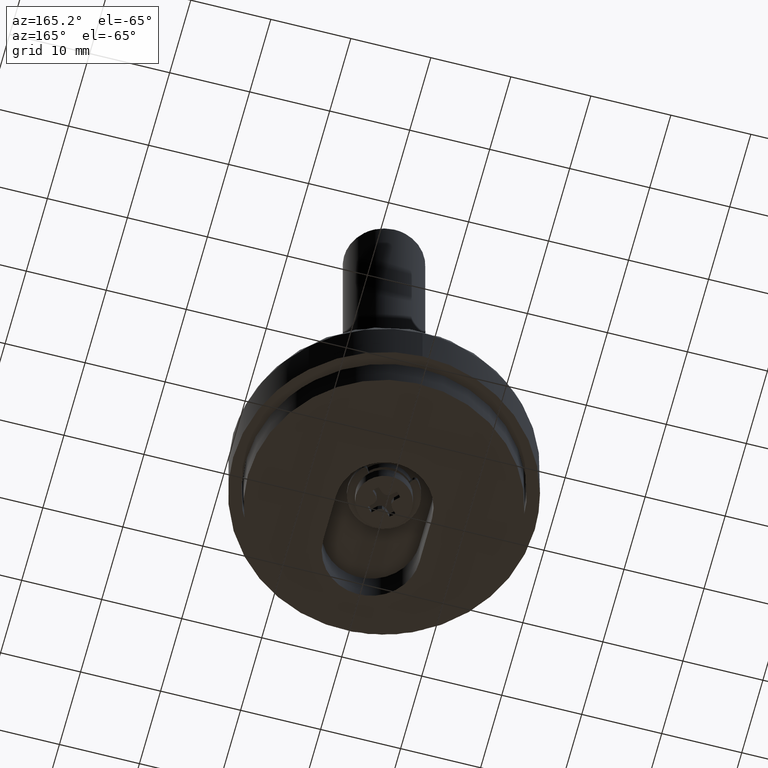
[diagram: clean part render]
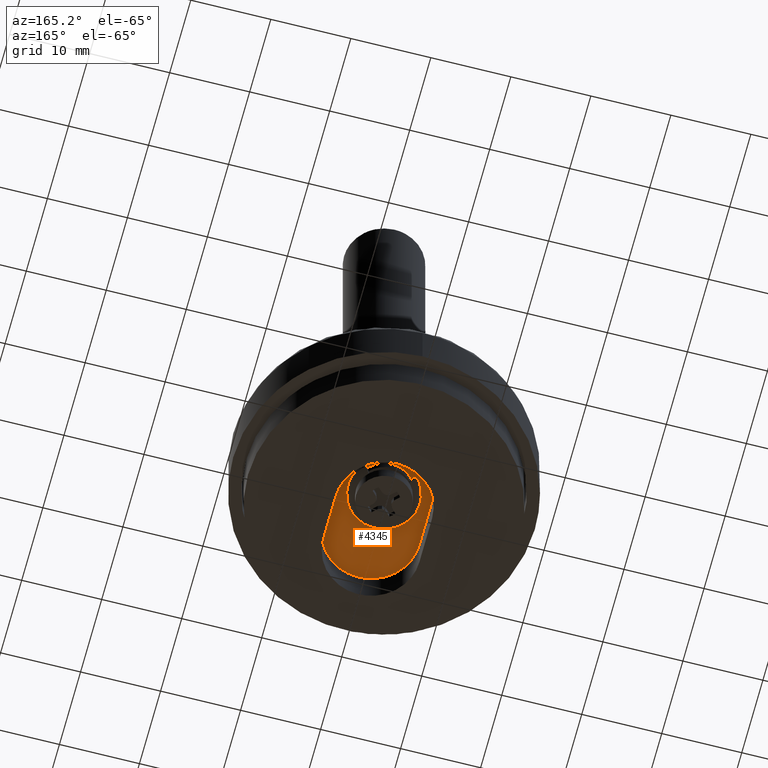
[diagram: same view with one face highlighted and labeled with its STEP entity id]
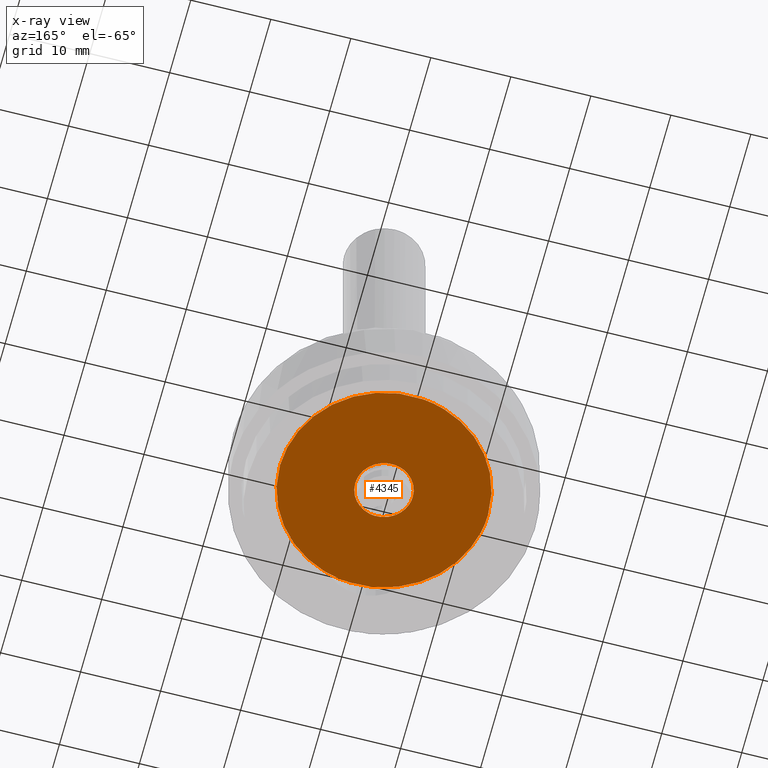
[diagram: x-ray of the same camera — body ghosted, the highlighted face saturated]
A machine part, auxiliary view. The second image highlights one B-rep face of the part: STEP entity #4345.
The next image is the same camera in x-ray: the body ghosted, the highlighted face saturated — about 0% of this face is hidden behind the body in this view.
In plain terms, the highlighted face is a freeform B-spline surface patch.
Its self-contained STEP definition (entity closure, byte-faithful):
#3650=CARTESIAN_POINT('',(0.793610410845742,-12.975753639591460,4.900000000000000));
#3651=VERTEX_POINT('',#3650);
#3657=CARTESIAN_POINT('',(13.0,0.0,4.900000000000000));
#3658=VERTEX_POINT('',#3657);
#3659=CARTESIAN_POINT('',(13.0,0.0,4.900000000000000));
#3660=CARTESIAN_POINT('',(13.0,-12.229198323758276,4.900000000000000));
#3661=CARTESIAN_POINT('',(0.793610410845742,-12.975753639591463,4.900000000000000));
#3669=(BOUNDED_CURVE()B_SPLINE_CURVE(2,(#3659,#3660,#3661),.UNSPECIFIED.,.F.,.U.)B_SPLINE_CURVE_WITH_KNOTS((3,3),(0.500000000000000,0.739333236214580),.UNSPECIFIED.)CURVE()GEOMETRIC_REPRESENTATION_ITEM()RATIONAL_B_SPLINE_CURVE((1.0,0.719603672304285,0.976072628849365))REPRESENTATION_ITEM(''));
#3670=EDGE_CURVE('',#3658,#3651,#3669,.T.);
#3672=CARTESIAN_POINT('',(-1.534433004336435,12.909125274589901,4.900000000000000));
#3673=VERTEX_POINT('',#3672);
#3674=CARTESIAN_POINT('',(-1.534433004336435,12.909125274589901,4.900000000000000));
#3675=CARTESIAN_POINT('',(-0.769907468699510,13.000000000000005,4.900000000000000));
#3676=CARTESIAN_POINT('',(0.0,13.0,4.900000000000000));
#3677=CARTESIAN_POINT('',(13.0,13.0,4.899999999999999));
#3678=CARTESIAN_POINT('',(13.0,0.0,4.900000000000000));
#3686=(BOUNDED_CURVE()B_SPLINE_CURVE(2,(#3674,#3675,#3676,#3677,#3678),.UNSPECIFIED.,.F.,.U.)B_SPLINE_CURVE_WITH_KNOTS((3,2,3),(0.229562631221723,0.250000000000000,0.500000000000000),.UNSPECIFIED.)CURVE()GEOMETRIC_REPRESENTATION_ITEM()RATIONAL_B_SPLINE_CURVE((0.956027063298486,0.976056133097811,1.0,0.707106781186547,1.0))REPRESENTATION_ITEM(''));
#3687=EDGE_CURVE('',#3673,#3658,#3686,.T.);
#3731=CARTESIAN_POINT('',(-13.0,0.0,4.900000000000000));
#3732=VERTEX_POINT('',#3731);
#3733=CARTESIAN_POINT('',(-13.0,0.0,4.900000000000000));
#3734=CARTESIAN_POINT('',(-13.0,11.546279687667516,4.900000000000000));
#3735=CARTESIAN_POINT('',(-1.534433004336435,12.909125274589901,4.900000000000000));
#3743=(BOUNDED_CURVE()B_SPLINE_CURVE(2,(#3733,#3734,#3735),.UNSPECIFIED.,.F.,.U.)B_SPLINE_CURVE_WITH_KNOTS((3,3),(0.0,0.229562631221723),.UNSPECIFIED.)CURVE()GEOMETRIC_REPRESENTATION_ITEM()RATIONAL_B_SPLINE_CURVE((1.0,0.731050648088736,0.956027063298486))REPRESENTATION_ITEM(''));
#3744=EDGE_CURVE('',#3732,#3673,#3743,.T.);
#3746=CARTESIAN_POINT('',(0.793610410845742,-12.975753639591463,4.900000000000000));
#3747=CARTESIAN_POINT('',(0.397175592444657,-13.000000000000002,4.900000000000000));
#3748=CARTESIAN_POINT('',(0.0,-13.0,4.900000000000000));
#3749=CARTESIAN_POINT('',(-13.0,-13.0,4.899999999999999));
#3750=CARTESIAN_POINT('',(-13.0,0.0,4.900000000000000));
#3758=(BOUNDED_CURVE()B_SPLINE_CURVE(2,(#3746,#3747,#3748,#3749,#3750),.UNSPECIFIED.,.F.,.U.)B_SPLINE_CURVE_WITH_KNOTS((3,2,3),(0.739333236214580,0.750000000000000,1.0),.UNSPECIFIED.)CURVE()GEOMETRIC_REPRESENTATION_ITEM()RATIONAL_B_SPLINE_CURVE((0.976072628849365,0.987503108882262,1.0,0.707106781186547,1.0))REPRESENTATION_ITEM(''));
#3759=EDGE_CURVE('',#3651,#3732,#3758,.T.);
#3806=CARTESIAN_POINT('',(-0.424923244880154,3.574834294895432,4.899999999999999));
#3807=VERTEX_POINT('',#3806);
#3808=CARTESIAN_POINT('',(3.600000000000000,0.0,4.900000000000000));
#3809=VERTEX_POINT('',#3808);
#3810=CARTESIAN_POINT('',(-0.424923244880154,3.574834294895432,4.899999999999999));
#3811=CARTESIAN_POINT('',(-0.213206830863925,3.600000000000000,4.900000000000000));
#3812=CARTESIAN_POINT('',(0.0,3.600000000000000,4.900000000000000));
#3813=CARTESIAN_POINT('',(3.600000000000000,3.600000000000000,4.899999999999999));
#3814=CARTESIAN_POINT('',(3.600000000000000,0.0,4.900000000000000));
#3822=(BOUNDED_CURVE()B_SPLINE_CURVE(2,(#3810,#3811,#3812,#3813,#3814),.UNSPECIFIED.,.F.,.U.)B_SPLINE_CURVE_WITH_KNOTS((3,2,3),(0.229562473504693,0.250000000000000,0.500000000000000),.UNSPECIFIED.)CURVE()GEOMETRIC_REPRESENTATION_ITEM()RATIONAL_B_SPLINE_CURVE((0.956026754166421,0.976055948320817,1.0,0.707106781186547,1.0))REPRESENTATION_ITEM(''));
#3823=EDGE_CURVE('',#3807,#3809,#3822,.T.);
#3825=CARTESIAN_POINT('',(0.219768940735979,-3.593285629149734,4.899999999999904));
#3826=VERTEX_POINT('',#3825);
#3827=CARTESIAN_POINT('',(3.600000000000000,0.0,4.900000000000000));
#3828=CARTESIAN_POINT('',(3.600000000000001,-3.386547318870682,4.900000000000000));
#3829=CARTESIAN_POINT('',(0.219768940735979,-3.593285629149734,4.899999999999904));
#3837=(BOUNDED_CURVE()B_SPLINE_CURVE(2,(#3827,#3828,#3829),.UNSPECIFIED.,.F.,.U.)B_SPLINE_CURVE_WITH_KNOTS((3,3),(0.500000000000000,0.739333240829883),.UNSPECIFIED.)CURVE()GEOMETRIC_REPRESENTATION_ITEM()RATIONAL_B_SPLINE_CURVE((1.0,0.719603666897121,0.976072638740862))REPRESENTATION_ITEM(''));
#3838=EDGE_CURVE('',#3809,#3826,#3837,.T.);
#3905=CARTESIAN_POINT('',(-3.600000000000000,0.0,4.900000000000000));
#3906=VERTEX_POINT('',#3905);
#3907=CARTESIAN_POINT('',(-3.600000000000000,0.0,4.900000000000000));
#3908=CARTESIAN_POINT('',(-3.600000000000001,3.197428293216273,4.900000000000001));
#3909=CARTESIAN_POINT('',(-0.424923244880154,3.574834294895432,4.899999999999999));
#3917=(BOUNDED_CURVE()B_SPLINE_CURVE(2,(#3907,#3908,#3909),.UNSPECIFIED.,.F.,.U.)B_SPLINE_CURVE_WITH_KNOTS((3,3),(0.0,0.229562473504693),.UNSPECIFIED.)CURVE()GEOMETRIC_REPRESENTATION_ITEM()RATIONAL_B_SPLINE_CURVE((1.0,0.731050832865730,0.956026754166421))REPRESENTATION_ITEM(''));
#3918=EDGE_CURVE('',#3906,#3807,#3917,.T.);
#3952=CARTESIAN_POINT('',(0.219768940735979,-3.593285629149734,4.899999999999904));
#3953=CARTESIAN_POINT('',(0.109987038946980,-3.600000000000000,4.900000000000000));
#3954=CARTESIAN_POINT('',(0.0,-3.600000000000000,4.900000000000000));
#3955=CARTESIAN_POINT('',(-3.600000000000000,-3.600000000000000,4.899999999999999));
#3956=CARTESIAN_POINT('',(-3.600000000000000,0.0,4.900000000000000));
#3964=(BOUNDED_CURVE()B_SPLINE_CURVE(2,(#3952,#3953,#3954,#3955,#3956),.UNSPECIFIED.,.F.,.U.)B_SPLINE_CURVE_WITH_KNOTS((3,2,3),(0.739333240829883,0.750000000000000,1.0),.UNSPECIFIED.)CURVE()GEOMETRIC_REPRESENTATION_ITEM()RATIONAL_B_SPLINE_CURVE((0.976072638740862,0.987503114289427,1.0,0.707106781186547,1.0))REPRESENTATION_ITEM(''));
#3965=EDGE_CURVE('',#3826,#3906,#3964,.T.);
#4328=CARTESIAN_POINT('',(-14.298699949606950,-14.298384029300779,4.900000000000000));
#4329=CARTESIAN_POINT('',(14.298700646981301,-14.298384029300779,4.900000000000000));
#4330=CARTESIAN_POINT('',(-14.298699949606950,14.298463529975990,4.900000000000000));
#4331=CARTESIAN_POINT('',(14.298700646981301,14.298463529975990,4.900000000000000));
#4332=B_SPLINE_SURFACE_WITH_KNOTS('',1,1,((#4328,#4330),(#4329,#4331)),.UNSPECIFIED.,.F.,.F.,.U.,(2,2),(2,2),(0.0,28.597400596588251),(0.0,28.596847559276771),.UNSPECIFIED.);
#4333=ORIENTED_EDGE('',*,*,#3744,.T.);
#4334=ORIENTED_EDGE('',*,*,#3687,.T.);
#4335=ORIENTED_EDGE('',*,*,#3670,.T.);
#4336=ORIENTED_EDGE('',*,*,#3759,.T.);
#4337=EDGE_LOOP('',(#4333,#4334,#4335,#4336));
#4338=FACE_OUTER_BOUND('',#4337,.T.);
#4339=ORIENTED_EDGE('',*,*,#3838,.F.);
#4340=ORIENTED_EDGE('',*,*,#3823,.F.);
#4341=ORIENTED_EDGE('',*,*,#3918,.F.);
#4342=ORIENTED_EDGE('',*,*,#3965,.F.);
#4343=EDGE_LOOP('',(#4339,#4340,#4341,#4342));
#4344=FACE_BOUND('',#4343,.T.);
#4345=ADVANCED_FACE('',(#4338,#4344),#4332,.F.);